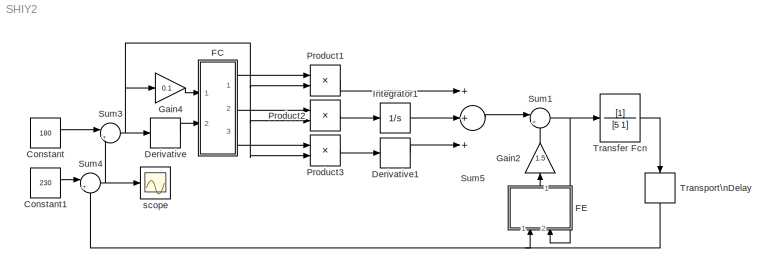
MODEL SHIY2
KIND model
BLOCK [Constant] Constant
  Value = 180
BLOCK [Constant] Constant1
  Value = 230
BLOCK [Derivative] Derivative
BLOCK [Derivative] Derivative1
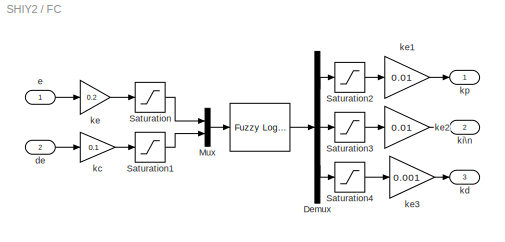
BLOCK [SubSystem] FC
  MaskHideContents = off
  MinAlgLoopOccurrences = off
  Ports = [2, 3]
  RTWSystemCode = Auto
  TreatAsAtomicUnit = off
BLOCK [Reference] FC/   REF=fuzblock/Fuzzy Logic \nController  (lib defined in mdl_858b3b3e7478)
  Ports = [1, 1]
  ShowPortLabels = on
  SourceBlock = fuzblock/Fuzzy Logic \nController
  SourceType = FIS
  fis = fuzzyFC7
BLOCK [Demux] FC/Demux
  DisplayOption = bar
  Outputs = 3
  Ports = [1, 3]
BLOCK [Mux] FC/Mux
  DisplayOption = bar
  Inputs = 2
  Ports = [2, 1]
BLOCK [Saturate] FC/Saturation
  LowerLimit = -6
  UpperLimit = 6
BLOCK [Saturate] FC/Saturation1
  LowerLimit = -6
  UpperLimit = 6
BLOCK [Saturate] FC/Saturation2
  LowerLimit = -6
  UpperLimit = 6
BLOCK [Saturate] FC/Saturation3
  LowerLimit = -6
  UpperLimit = 6
BLOCK [Saturate] FC/Saturation4
  LowerLimit = -6
  UpperLimit = 6
BLOCK [Inport] FC/de
  IconDisplay = Port number
  Port = 2
BLOCK [Inport] FC/e
  IconDisplay = Port number
BLOCK [Gain] FC/kc
  Gain = 0.1
  OutDataTypeMode = Inherit via internal rule
  ParameterDataTypeMode = Inherit via internal rule
  SaturateOnIntegerOverflow = off
BLOCK [Outport] FC/kd
  BusOutputAsStruct = off
  IconDisplay = Port number
  Port = 3
BLOCK [Gain] FC/ke
  Gain = 0.2
  OutDataTypeMode = Inherit via internal rule
  ParameterDataTypeMode = Inherit via internal rule
  SaturateOnIntegerOverflow = off
BLOCK [Gain] FC/ke1
  Gain = 0.01
  OutDataTypeMode = Inherit via internal rule
  ParameterDataTypeMode = Inherit via internal rule
  SaturateOnIntegerOverflow = off
BLOCK [Gain] FC/ke2
  Gain = 0.01
  OutDataTypeMode = Inherit via internal rule
  ParameterDataTypeMode = Inherit via internal rule
  SaturateOnIntegerOverflow = off
BLOCK [Gain] FC/ke3
  Gain = 0.001
  OutDataTypeMode = Inherit via internal rule
  ParameterDataTypeMode = Inherit via internal rule
  SaturateOnIntegerOverflow = off
BLOCK [Outport] FC/ki\n
  BusOutputAsStruct = off
  IconDisplay = Port number
  Port = 2
BLOCK [Outport] FC/kp
  BusOutputAsStruct = off
  IconDisplay = Port number
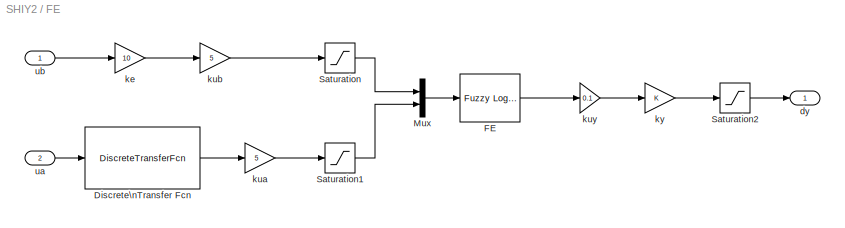
BLOCK [SubSystem] FE
  MaskHideContents = off
  MinAlgLoopOccurrences = off
  Ports = [2, 1]
  RTWSystemCode = Auto
  TreatAsAtomicUnit = off
BLOCK [DiscreteTransferFcn] FE/Discrete\nTransfer Fcn
  Denominator = [1 0 0 0 0 0 0 0 0 0 0]
  Numerator = [1 1 1 1 1 1 1 1 1 1]
BLOCK [Reference] FE/FE  REF=fuzblock/Fuzzy Logic \nController  (lib defined in mdl_858b3b3e7478)
  Ports = [1, 1]
  ShowPortLabels = on
  SourceBlock = fuzblock/Fuzzy Logic \nController
  SourceType = FIS
  fis = fuzzyFE
BLOCK [Mux] FE/Mux
  DisplayOption = bar
  Inputs = 2
  Ports = [2, 1]
BLOCK [Saturate] FE/Saturation
  LowerLimit = -6
  UpperLimit = 6
BLOCK [Saturate] FE/Saturation1
  LowerLimit = -6
  UpperLimit = 6
BLOCK [Saturate] FE/Saturation2
  LowerLimit = -6
  UpperLimit = 6
BLOCK [Outport] FE/dy
  BusOutputAsStruct = off
  IconDisplay = Port number
BLOCK [Gain] FE/ke
  Gain = 10
  OutDataTypeMode = Inherit via internal rule
  ParameterDataTypeMode = Inherit via internal rule
  SaturateOnIntegerOverflow = off
BLOCK [Gain] FE/kua
  Gain = 5
  OutDataTypeMode = Inherit via internal rule
  ParameterDataTypeMode = Inherit via internal rule
  SaturateOnIntegerOverflow = off
BLOCK [Gain] FE/kub
  Gain = 5
  OutDataTypeMode = Inherit via internal rule
  ParameterDataTypeMode = Inherit via internal rule
  SaturateOnIntegerOverflow = off
BLOCK [Gain] FE/kuy
  Gain = 0.1
  OutDataTypeMode = Inherit via internal rule
  ParameterDataTypeMode = Inherit via internal rule
  SaturateOnIntegerOverflow = off
BLOCK [Gain] FE/ky
  OutDataTypeMode = Inherit via internal rule
  ParameterDataTypeMode = Inherit via internal rule
  SaturateOnIntegerOverflow = off
BLOCK [Inport] FE/ua
  IconDisplay = Port number
  Port = 2
BLOCK [Inport] FE/ub
  IconDisplay = Port number
BLOCK [Gain] Gain2
  Gain = 1.5
  OutDataTypeMode = Inherit via internal rule
  ParameterDataTypeMode = Inherit via internal rule
  SaturateOnIntegerOverflow = off
BLOCK [Gain] Gain4
  Gain = 0.1
  OutDataTypeMode = Inherit via internal rule
  ParameterDataTypeMode = Inherit via internal rule
  SaturateOnIntegerOverflow = off
BLOCK [Integrator] Integrator1
  IgnoreLimit = off
  Ports = [1, 1]
BLOCK [Product] Product1
  InputSameDT = off
  OutDataTypeMode = Inherit via internal rule
  Ports = [2, 1]
  SaturateOnIntegerOverflow = off
BLOCK [Product] Product2
  InputSameDT = off
  OutDataTypeMode = Inherit via internal rule
  Ports = [2, 1]
  SaturateOnIntegerOverflow = off
BLOCK [Product] Product3
  InputSameDT = off
  OutDataTypeMode = Inherit via internal rule
  Ports = [2, 1]
  SaturateOnIntegerOverflow = off
BLOCK [Sum] Sum1
  IconShape = round
  InputSameDT = off
  Inputs = |++
  OutDataTypeMode = Inherit via internal rule
  Ports = [2, 1]
  SaturateOnIntegerOverflow = off
BLOCK [Sum] Sum3
  IconShape = round
  InputSameDT = off
  Inputs = |+-
  OutDataTypeMode = Inherit via internal rule
  Ports = [2, 1]
  SaturateOnIntegerOverflow = off
BLOCK [Sum] Sum4
  IconShape = round
  InputSameDT = off
  Inputs = |+-
  OutDataTypeMode = Inherit via internal rule
  Ports = [2, 1]
  SaturateOnIntegerOverflow = off
BLOCK [Sum] Sum5
  InputSameDT = off
  Inputs = +++
  OutDataTypeMode = Inherit via internal rule
  Ports = [3, 1]
  SaturateOnIntegerOverflow = off
BLOCK [TransferFcn] Transfer Fcn
  Denominator = [5 1]
BLOCK [TransportDelay] Transport\nDelay
  DelayTime = 10
BLOCK [Scope] scope
  DataFormat = StructureWithTime
  Floating = off
  LimitDataPoints = off
  NumInputPorts = 1
  Ports = [1]
  SampleTime = 0
  SaveName = ScopeData3
  TimeRange = 200
  YMax = 180.6
  YMin = 180
LINE Constant1:1 -> Sum4:1
LINE Constant:1 -> Sum3:1
LINE Derivative1:1 -> Sum5:3
LINE Derivative:1 -> FC:2
LINE FC/ :1 -> FC/Demux:1
LINE FC/Demux:1 -> FC/Saturation2:1
LINE FC/Demux:2 -> FC/Saturation3:1
LINE FC/Demux:3 -> FC/Saturation4:1
LINE FC/Mux:1 -> FC/ :1
LINE FC/Saturation1:1 -> FC/Mux:2
LINE FC/Saturation2:1 -> FC/ke1:1
LINE FC/Saturation3:1 -> FC/ke2:1
LINE FC/Saturation4:1 -> FC/ke3:1
LINE FC/Saturation:1 -> FC/Mux:1
LINE FC/de:1 -> FC/kc:1
LINE FC/e:1 -> FC/ke:1
LINE FC/kc:1 -> FC/Saturation1:1
LINE FC/ke1:1 -> FC/kp:1
LINE FC/ke2:1 -> FC/ki\n:1
LINE FC/ke3:1 -> FC/kd:1
LINE FC/ke:1 -> FC/Saturation:1
LINE FC:1 -> Product1:1
LINE FC:2 -> Product2:1
LINE FC:3 -> Product3:1
LINE FE/Discrete\nTransfer Fcn:1 -> FE/kua:1
LINE FE/FE:1 -> FE/kuy:1
LINE FE/Mux:1 -> FE/FE:1
LINE FE/Saturation1:1 -> FE/Mux:2
LINE FE/Saturation2:1 -> FE/dy:1
LINE FE/Saturation:1 -> FE/Mux:1
LINE FE/ke:1 -> FE/kub:1
LINE FE/kua:1 -> FE/Saturation1:1
LINE FE/kub:1 -> FE/Saturation:1
LINE FE/kuy:1 -> FE/ky:1
LINE FE/ky:1 -> FE/Saturation2:1
LINE FE/ua:1 -> FE/Discrete\nTransfer Fcn:1
LINE FE/ub:1 -> FE/ke:1
LINE FE:1 -> Gain2:1
LINE Gain2:1 -> Sum1:2
LINE Gain4:1 -> FC:1
LINE Integrator1:1 -> Sum5:2
LINE Product1:1 -> Sum5:1
LINE Product2:1 -> Integrator1:1
LINE Product3:1 -> Derivative1:1
NET Sum1:1 -> FE:2, Transfer Fcn:1
NET Sum3:1 -> Derivative:1, Gain4:1, Product1:2, Product2:2, Product3:2
NET Sum4:1 -> Sum3:2, scope:1
LINE Sum5:1 -> Sum1:1
LINE Transfer Fcn:1 -> Transport\nDelay:1
NET Transport\nDelay:1 -> FE:1, Sum4:2
note: NET lines group one-source signal fan-out (src -> all destinations, sorted); 1:1 wires keep LINE
